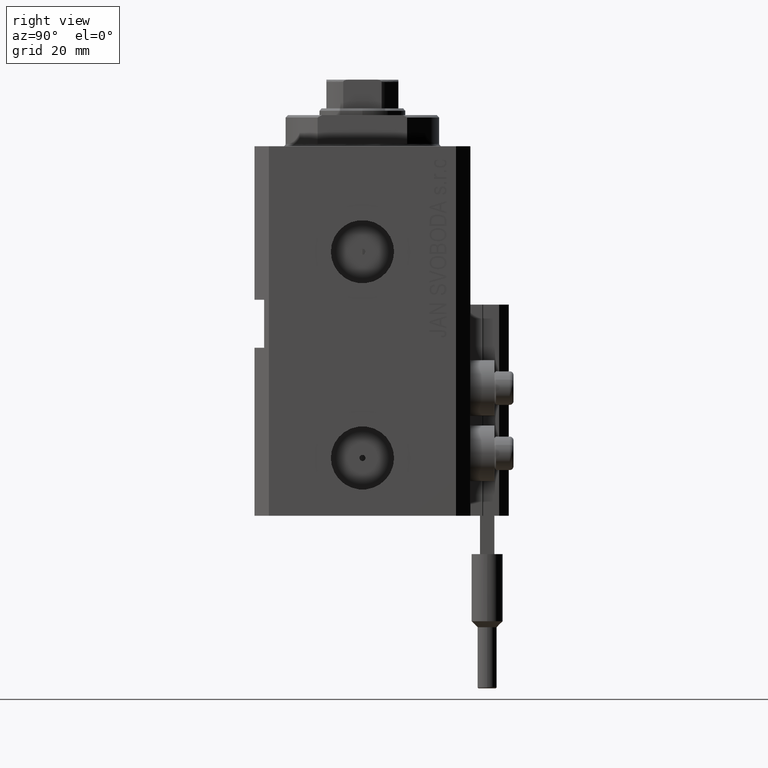
[diagram: clean part render]
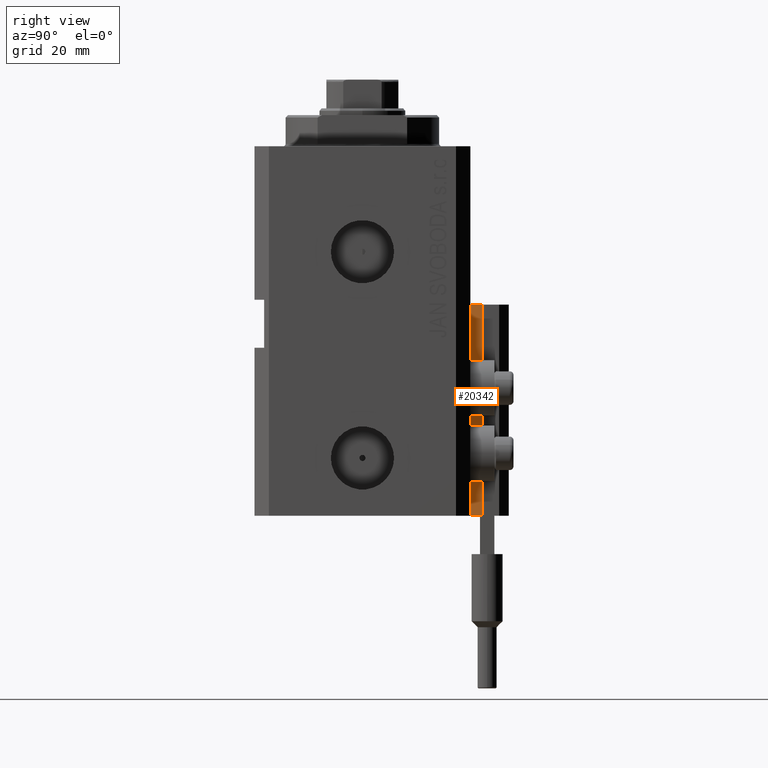
[diagram: same view with one face highlighted and labeled with its STEP entity id]
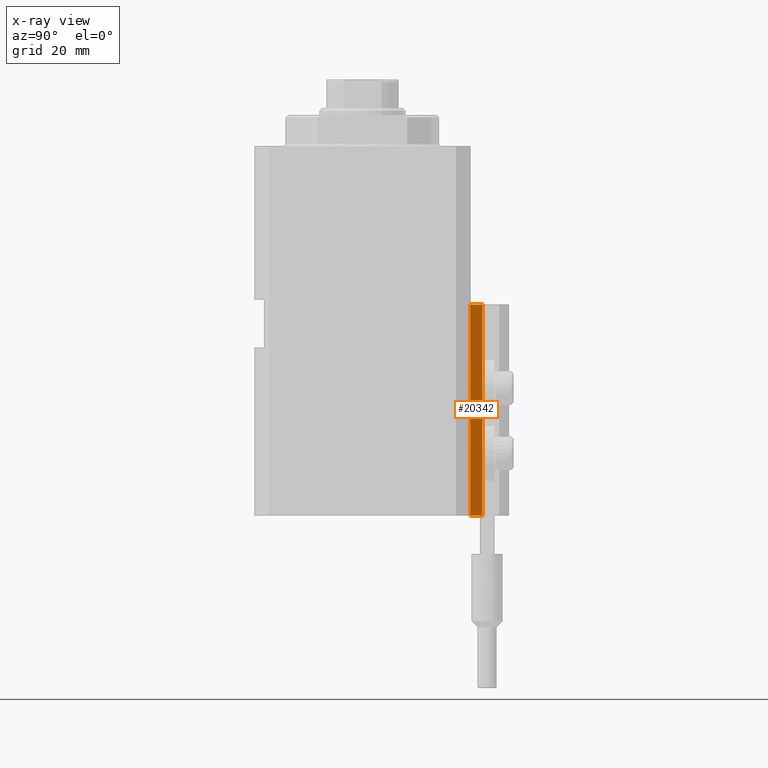
[diagram: x-ray of the same camera — body ghosted, the highlighted face saturated]
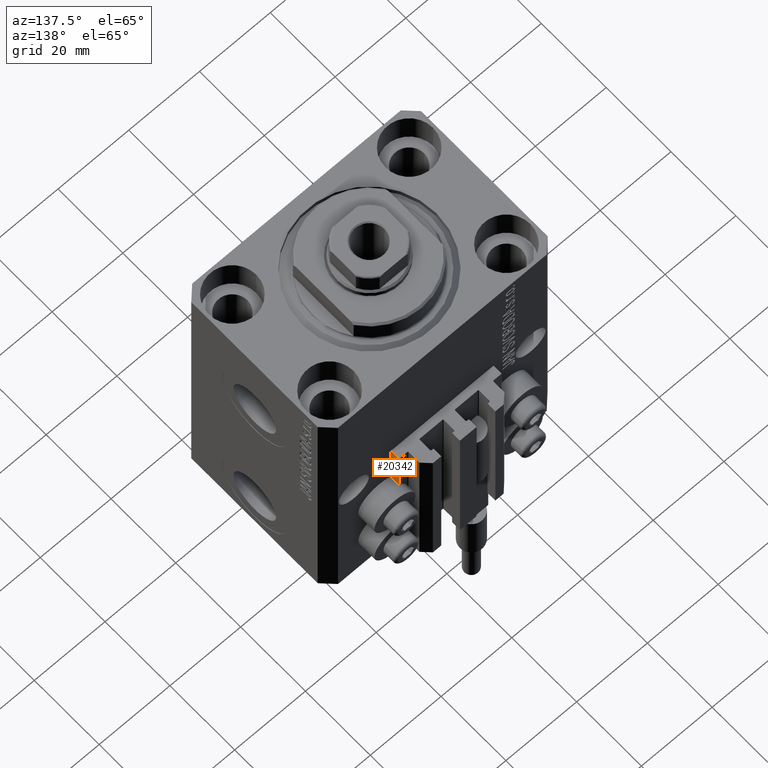
[diagram: same view with one face highlighted and labeled with its STEP entity id]
A machine part, right view. The second image highlights one B-rep face of the part: STEP entity #20342.
The next image is the same camera in x-ray: the body ghosted, the highlighted face saturated — about 0% of this face is hidden behind the body in this view.
A second angle (auxiliary view) of the same face is appended — the face is thin or edge-on in the first view.
In plain terms, the highlighted planar face has unit normal (1, -0, 0).
Its self-contained STEP definition (entity closure, byte-faithful):
#4426 = EDGE_LOOP ( 'NONE', ( #26274, #5595, #36396, #35579 ) ) ;
#5595 = ORIENTED_EDGE ( 'NONE', *, *, #38823, .F. ) ;
#6682 = CARTESIAN_POINT ( 'NONE',  ( 14.49999999999999645, 22.49999999999949907, -77.00000000000000000 ) ) ;
#9005 = VERTEX_POINT ( 'NONE', #27522 ) ;
#10360 = LINE ( 'NONE', #43702, #34777 ) ;
#14781 = VERTEX_POINT ( 'NONE', #32122 ) ;
#14850 = DIRECTION ( 'NONE',  ( 1.000000000000000000, -6.938893903907212600E-16, 0.000000000000000000 ) ) ;
#15530 = VECTOR ( 'NONE', #22354, 1000.000000000000000 ) ;
#17037 = EDGE_CURVE ( 'NONE', #27465, #9005, #30394, .T. ) ;
#19742 = CARTESIAN_POINT ( 'NONE',  ( 14.49999999999999645, 22.49999999999949907, -77.00000000000000000 ) ) ;
#20342 = ADVANCED_FACE ( 'NONE', ( #22931 ), #23183, .T. ) ;
#22354 = DIRECTION ( 'NONE',  ( 0.000000000000000000, 0.000000000000000000, 1.000000000000000000 ) ) ;
#22931 = FACE_OUTER_BOUND ( 'NONE', #4426, .T. ) ;
#23183 = PLANE ( 'NONE',  #29831 ) ;
#26056 = EDGE_CURVE ( 'NONE', #37659, #14781, #10360, .T. ) ;
#26274 = ORIENTED_EDGE ( 'NONE', *, *, #17037, .F. ) ;
#27465 = VERTEX_POINT ( 'NONE', #47663 ) ;
#27522 = CARTESIAN_POINT ( 'NONE',  ( 14.49999999999999822, 24.99999999999950617, -33.00000000000000000 ) ) ;
#29831 = AXIS2_PLACEMENT_3D ( 'NONE', #19742, #14850, #30039 ) ;
#30039 = DIRECTION ( 'NONE',  ( 6.938893903907212600E-16, 1.000000000000000000, 0.000000000000000000 ) ) ;
#30394 = LINE ( 'NONE', #34307, #48079 ) ;
#31235 = VECTOR ( 'NONE', #43716, 1000.000000000000000 ) ;
#32122 = CARTESIAN_POINT ( 'NONE',  ( 14.49999999999999822, 24.99999999999950617, -77.00000000000000000 ) ) ;
#32622 = CARTESIAN_POINT ( 'NONE',  ( 14.49999999999999645, 22.49999999999949907, -77.00000000000000000 ) ) ;
#34307 = CARTESIAN_POINT ( 'NONE',  ( 14.49999999999999645, 22.49999999999949907, -33.00000000000000000 ) ) ;
#34777 = VECTOR ( 'NONE', #47625, 1000.000000000000000 ) ;
#35579 = ORIENTED_EDGE ( 'NONE', *, *, #40794, .T. ) ;
#36396 = ORIENTED_EDGE ( 'NONE', *, *, #26056, .T. ) ;
#36601 = CARTESIAN_POINT ( 'NONE',  ( 14.49999999999999822, 24.99999999999950617, -77.00000000000000000 ) ) ;
#37002 = DIRECTION ( 'NONE',  ( 6.938893903907212600E-16, 1.000000000000000000, 0.000000000000000000 ) ) ;
#37304 = LINE ( 'NONE', #6682, #15530 ) ;
#37659 = VERTEX_POINT ( 'NONE', #32622 ) ;
#38823 = EDGE_CURVE ( 'NONE', #37659, #27465, #37304, .T. ) ;
#40794 = EDGE_CURVE ( 'NONE', #14781, #9005, #43947, .T. ) ;
#43702 = CARTESIAN_POINT ( 'NONE',  ( 14.49999999999999645, 22.49999999999949907, -77.00000000000000000 ) ) ;
#43716 = DIRECTION ( 'NONE',  ( 0.000000000000000000, 0.000000000000000000, 1.000000000000000000 ) ) ;
#43947 = LINE ( 'NONE', #36601, #31235 ) ;
#47625 = DIRECTION ( 'NONE',  ( 6.938893903907212600E-16, 1.000000000000000000, 0.000000000000000000 ) ) ;
#47663 = CARTESIAN_POINT ( 'NONE',  ( 14.49999999999999645, 22.49999999999949907, -33.00000000000000000 ) ) ;
#48079 = VECTOR ( 'NONE', #37002, 1000.000000000000000 ) ;